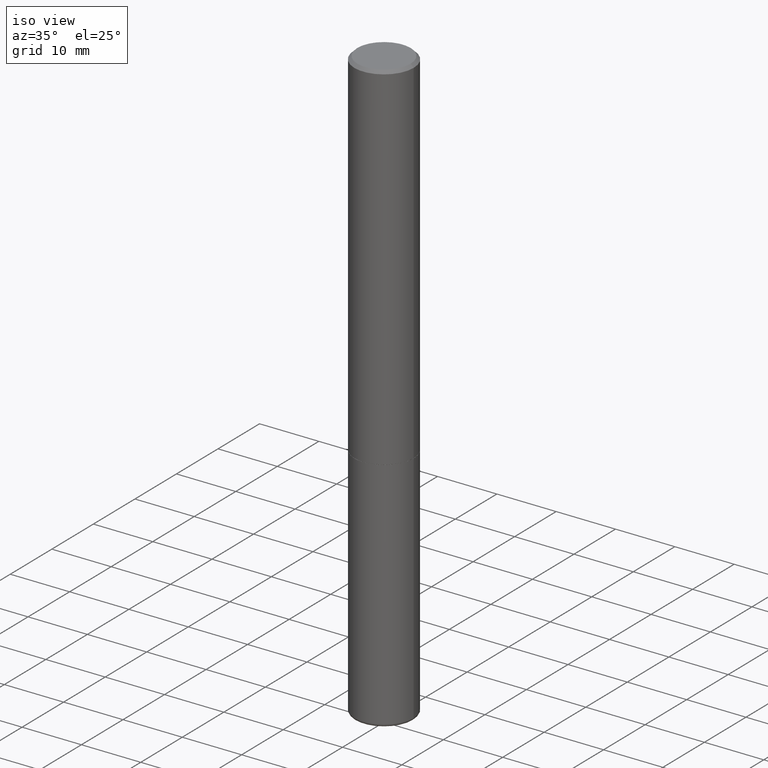
[diagram: clean part render]
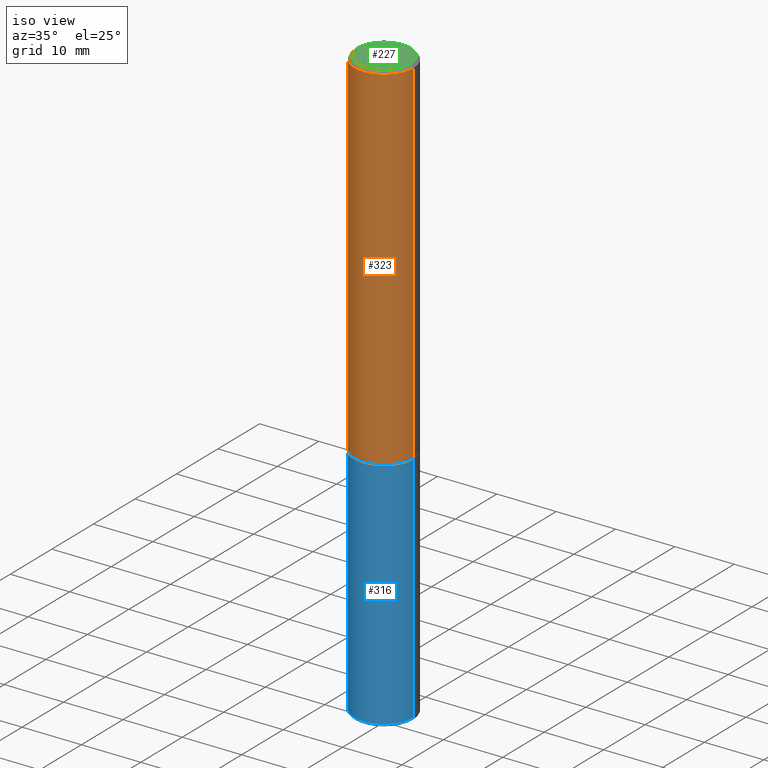
[diagram: same view with three faces highlighted in distinct colors, each labeled with its STEP entity id]
A machine part, iso view with three faces highlighted in distinct colors.
Their STEP definitions:

[orange] entity #323 — the highlighted cylindrical surface (edge-blend (fillet) strip) has radius 5 mm, axis along (-0, 0, 1).
#8 = VECTOR ( 'NONE', #238, 39.37007874015748143 ) ;
#14 = DIRECTION ( 'NONE',  ( -2.445468806185136597E-29, 3.491481338843145583E-15, 1.000000000000000000 ) ) ;
#28 = VERTEX_POINT ( 'NONE', #150 ) ;
#30 = ORIENTED_EDGE ( 'NONE', *, *, #219, .T. ) ;
#34 = DIRECTION ( 'NONE',  ( 1.000000000000000000, -6.982962677686266711E-15, 0.000000000000000000 ) ) ;
#40 = CARTESIAN_POINT ( 'NONE',  ( 0.1968500000000002748, -9.618681940378978228E-15, -2.361199999999999743 ) ) ;
#41 = VERTEX_POINT ( 'NONE', #40 ) ;
#42 = VECTOR ( 'NONE', #297, 39.37007874015748143 ) ;
#68 = LINE ( 'NONE', #202, #8 ) ;
#71 = AXIS2_PLACEMENT_3D ( 'NONE', #199, #404, #296 ) ;
#88 = CARTESIAN_POINT ( 'NONE',  ( 0.1968500000000000527, -1.420318657638189516E-15, -0.02000000000000004205 ) ) ;
#134 = ORIENTED_EDGE ( 'NONE', *, *, #262, .T. ) ;
#149 = CARTESIAN_POINT ( 'NONE',  ( 0.000000000000000000, 0.000000000000000000, 0.000000000000000000 ) ) ;
#150 = CARTESIAN_POINT ( 'NONE',  ( -0.1968500000000002748, -2.758254306682887043E-15, -2.361199999999999743 ) ) ;
#151 = DIRECTION ( 'NONE',  ( -2.445468806185136597E-29, 3.491481338843145583E-15, 1.000000000000000000 ) ) ;
#155 = AXIS2_PLACEMENT_3D ( 'NONE', #217, #151, #34 ) ;
#176 = VERTEX_POINT ( 'NONE', #318 ) ;
#177 = VERTEX_POINT ( 'NONE', #88 ) ;
#182 = ORIENTED_EDGE ( 'NONE', *, *, #213, .F. ) ;
#185 = FACE_OUTER_BOUND ( 'NONE', #364, .T. ) ;
#199 = CARTESIAN_POINT ( 'NONE',  ( 5.774240945164344150E-29, -8.244085737276433464E-15, -2.361199999999999743 ) ) ;
#202 = CARTESIAN_POINT ( 'NONE',  ( -0.1968500000000001915, 1.398703375343758577E-15, -9.682923725166790684E-30 ) ) ;
#203 = ORIENTED_EDGE ( 'NONE', *, *, #411, .F. ) ;
#213 = EDGE_CURVE ( 'NONE', #176, #177, #282, .T. ) ;
#217 = CARTESIAN_POINT ( 'NONE',  ( 4.890937612370283668E-31, -6.982962677686305168E-17, -0.02000000000000004205 ) ) ;
#219 = EDGE_CURVE ( 'NONE', #28, #41, #263, .T. ) ;
#238 = DIRECTION ( 'NONE',  ( -2.445468806185136877E-29, 3.491481338843145188E-15, 1.000000000000000000 ) ) ;
#244 = CYLINDRICAL_SURFACE ( 'NONE', #321, 0.1968500000000001915 ) ;
#248 = DIRECTION ( 'NONE',  ( 1.000000000000000000, -6.982962677686266711E-15, 4.876176775795935793E-29 ) ) ;
#259 = LINE ( 'NONE', #383, #42 ) ;
#262 = EDGE_CURVE ( 'NONE', #41, #177, #259, .T. ) ;
#263 = CIRCLE ( 'NONE', #71, 0.1968500000000002748 ) ;
#282 = CIRCLE ( 'NONE', #155, 0.1968500000000000527 ) ;
#296 = DIRECTION ( 'NONE',  ( 1.000000000000000000, -6.982962677686269077E-15, 0.000000000000000000 ) ) ;
#297 = DIRECTION ( 'NONE',  ( -2.445468806185136877E-29, 3.491481338843145188E-15, 1.000000000000000000 ) ) ;
#318 = CARTESIAN_POINT ( 'NONE',  ( -0.1968500000000000527, 1.304766576325678902E-15, -0.02000000000000004205 ) ) ;
#321 = AXIS2_PLACEMENT_3D ( 'NONE', #149, #14, #248 ) ;
#323 = ADVANCED_FACE ( 'NONE', ( #185 ), #244, .T. ) ;
#364 = EDGE_LOOP ( 'NONE', ( #203, #30, #134, #182 ) ) ;
#383 = CARTESIAN_POINT ( 'NONE',  ( 0.1968500000000001915, -1.374596203102542989E-15, 9.598753983154309266E-30 ) ) ;
#404 = DIRECTION ( 'NONE',  ( -2.445468806185136597E-29, 3.491481338843145583E-15, 1.000000000000000000 ) ) ;
#411 = EDGE_CURVE ( 'NONE', #28, #176, #68, .T. ) ;

[blue] entity #316 — the highlighted cylindrical surface (edge-blend (fillet) strip) has radius 5 mm, axis along (-0, 0, 1).
#10 = CARTESIAN_POINT ( 'NONE',  ( -0.1968500000000000250, -9.563675158289009718E-15, -2.362199999999999633 ) ) ;
#15 = CARTESIAN_POINT ( 'NONE',  ( 9.579634954469036932E-29, -1.367717984865025539E-14, -3.917300000000000448 ) ) ;
#35 = AXIS2_PLACEMENT_3D ( 'NONE', #223, #49, #160 ) ;
#39 = ORIENTED_EDGE ( 'NONE', *, *, #311, .F. ) ;
#46 = DIRECTION ( 'NONE',  ( -2.445468806185136597E-29, 3.491481338843145583E-15, 1.000000000000000000 ) ) ;
#49 = DIRECTION ( 'NONE',  ( -2.445468806185136597E-29, 3.491481338843145583E-15, 1.000000000000000000 ) ) ;
#65 = EDGE_CURVE ( 'NONE', #113, #142, #385, .T. ) ;
#67 = VERTEX_POINT ( 'NONE', #154 ) ;
#77 = DIRECTION ( 'NONE',  ( -2.445468806185136597E-29, 3.491481338843145583E-15, 1.000000000000000000 ) ) ;
#84 = FACE_OUTER_BOUND ( 'NONE', #206, .T. ) ;
#86 = CARTESIAN_POINT ( 'NONE',  ( -0.1968499999999999417, -1.227847647330649996E-14, -3.917300000000000448 ) ) ;
#96 = DIRECTION ( 'NONE',  ( -2.445468806185136877E-29, 3.491481338843145188E-15, 1.000000000000000000 ) ) ;
#113 = VERTEX_POINT ( 'NONE', #86 ) ;
#120 = DIRECTION ( 'NONE',  ( 1.000000000000000000, -6.982962677686269866E-15, 0.000000000000000000 ) ) ;
#124 = CARTESIAN_POINT ( 'NONE',  ( 0.1968499999999999417, -1.505177605175279857E-14, -3.917300000000000448 ) ) ;
#142 = VERTEX_POINT ( 'NONE', #124 ) ;
#148 = EDGE_CURVE ( 'NONE', #142, #67, #382, .T. ) ;
#154 = CARTESIAN_POINT ( 'NONE',  ( 0.1968500000000000250, -9.622173421717819657E-15, -2.362199999999999633 ) ) ;
#157 = LINE ( 'NONE', #313, #416 ) ;
#160 = DIRECTION ( 'NONE',  ( 1.000000000000000000, -6.982962677686262766E-15, 0.000000000000000000 ) ) ;
#164 = AXIS2_PLACEMENT_3D ( 'NONE', #371, #46, #396 ) ;
#195 = VECTOR ( 'NONE', #96, 39.37007874015748143 ) ;
#196 = EDGE_CURVE ( 'NONE', #336, #67, #303, .T. ) ;
#206 = EDGE_LOOP ( 'NONE', ( #39, #279, #271, #350 ) ) ;
#223 = CARTESIAN_POINT ( 'NONE',  ( 5.776686413970529753E-29, -8.247577218615278049E-15, -2.362199999999999633 ) ) ;
#224 = CARTESIAN_POINT ( 'NONE',  ( 0.1968499999999999694, -1.374596203102541411E-15, 9.598753983154298056E-30 ) ) ;
#271 = ORIENTED_EDGE ( 'NONE', *, *, #148, .T. ) ;
#279 = ORIENTED_EDGE ( 'NONE', *, *, #65, .T. ) ;
#288 = DIRECTION ( 'NONE',  ( -2.445468806185136877E-29, 3.491481338843145188E-15, 1.000000000000000000 ) ) ;
#303 = CIRCLE ( 'NONE', #35, 0.1968500000000000250 ) ;
#311 = EDGE_CURVE ( 'NONE', #113, #336, #157, .T. ) ;
#313 = CARTESIAN_POINT ( 'NONE',  ( -0.1968499999999999694, 1.398703375343756999E-15, -9.682923725166782276E-30 ) ) ;
#316 = ADVANCED_FACE ( 'NONE', ( #84 ), #349, .T. ) ;
#336 = VERTEX_POINT ( 'NONE', #10 ) ;
#349 = CYLINDRICAL_SURFACE ( 'NONE', #164, 0.1968499999999999694 ) ;
#350 = ORIENTED_EDGE ( 'NONE', *, *, #196, .F. ) ;
#371 = CARTESIAN_POINT ( 'NONE',  ( 0.000000000000000000, 0.000000000000000000, 0.000000000000000000 ) ) ;
#382 = LINE ( 'NONE', #224, #195 ) ;
#385 = CIRCLE ( 'NONE', #389, 0.1968499999999999694 ) ;
#389 = AXIS2_PLACEMENT_3D ( 'NONE', #15, #77, #120 ) ;
#396 = DIRECTION ( 'NONE',  ( 1.000000000000000000, -6.982962677686266711E-15, 4.876176775795935793E-29 ) ) ;
#416 = VECTOR ( 'NONE', #288, 39.37007874015748143 ) ;

[green] entity #227 — the highlighted planar face has unit normal (0, -0, -1).
#1 = ORIENTED_EDGE ( 'NONE', *, *, #358, .T. ) ;
#23 = PLANE ( 'NONE',  #156 ) ;
#72 = ORIENTED_EDGE ( 'NONE', *, *, #145, .T. ) ;
#90 = DIRECTION ( 'NONE',  ( 1.000000000000000000, -6.982962677686266711E-15, 4.870572768024644056E-29 ) ) ;
#100 = CARTESIAN_POINT ( 'NONE',  ( 1.234936949548815012E-15, 0.1768499999999998407, -5.064871500317991731E-16 ) ) ;
#102 = VERTEX_POINT ( 'NONE', #260 ) ;
#108 = VERTEX_POINT ( 'NONE', #192 ) ;
#118 = CIRCLE ( 'NONE', #180, 0.1768499999999998407 ) ;
#145 = EDGE_CURVE ( 'NONE', #102, #108, #239, .T. ) ;
#156 = AXIS2_PLACEMENT_3D ( 'NONE', #100, #165, #299 ) ;
#165 = DIRECTION ( 'NONE',  ( 2.438088387897960049E-29, -3.491481338843145188E-15, -1.000000000000000000 ) ) ;
#180 = AXIS2_PLACEMENT_3D ( 'NONE', #251, #378, #90 ) ;
#192 = CARTESIAN_POINT ( 'NONE',  ( 0.1768499999999998407, -1.316798864272041549E-15, 2.219626494852302982E-16 ) ) ;
#194 = FACE_OUTER_BOUND ( 'NONE', #414, .T. ) ;
#227 = ADVANCED_FACE ( 'NONE', ( #194 ), #23, .F. ) ;
#239 = CIRCLE ( 'NONE', #326, 0.1768499999999998407 ) ;
#250 = DIRECTION ( 'NONE',  ( -2.445468806185136597E-29, 3.491481338843145583E-15, 1.000000000000000000 ) ) ;
#251 = CARTESIAN_POINT ( 'NONE',  ( -5.428027354543142984E-45, 7.749784485978325769E-31, 2.219626494852213988E-16 ) ) ;
#257 = DIRECTION ( 'NONE',  ( 1.000000000000000000, -6.982962677686266711E-15, 4.870572768024644056E-29 ) ) ;
#260 = CARTESIAN_POINT ( 'NONE',  ( -0.1768499999999998407, 1.269851762937247450E-15, 2.219626494852126227E-16 ) ) ;
#299 = DIRECTION ( 'NONE',  ( -1.000000000000000000, 6.982962677686265922E-15, -4.876176775795935793E-29 ) ) ;
#326 = AXIS2_PLACEMENT_3D ( 'NONE', #400, #250, #257 ) ;
#358 = EDGE_CURVE ( 'NONE', #108, #102, #118, .T. ) ;
#378 = DIRECTION ( 'NONE',  ( -2.445468806185136597E-29, 3.491481338843145583E-15, 1.000000000000000000 ) ) ;
#400 = CARTESIAN_POINT ( 'NONE',  ( -5.428027354543142984E-45, 7.749784485978325769E-31, 2.219626494852213988E-16 ) ) ;
#414 = EDGE_LOOP ( 'NONE', ( #72, #1 ) ) ;